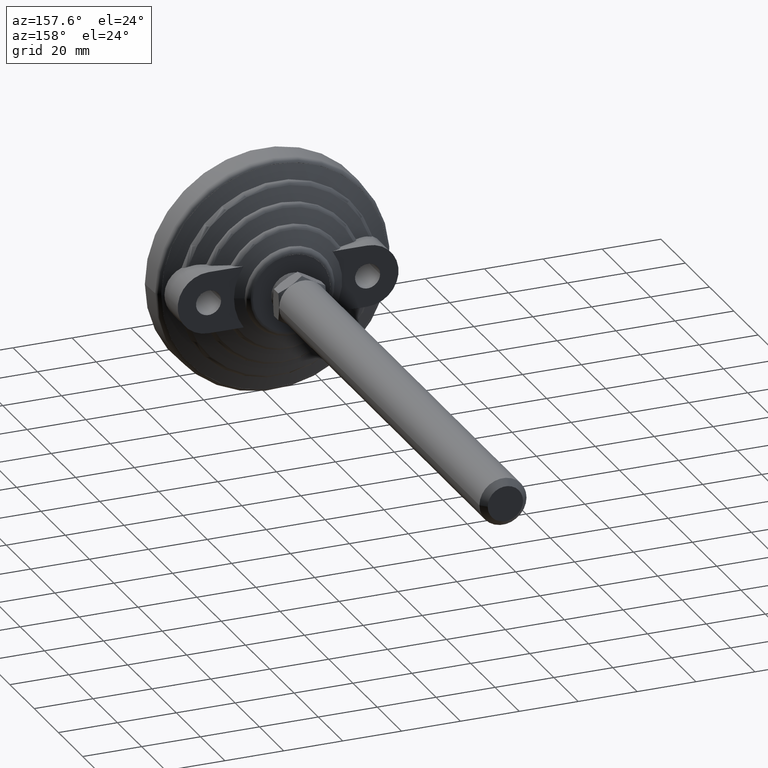
[diagram: clean part render]
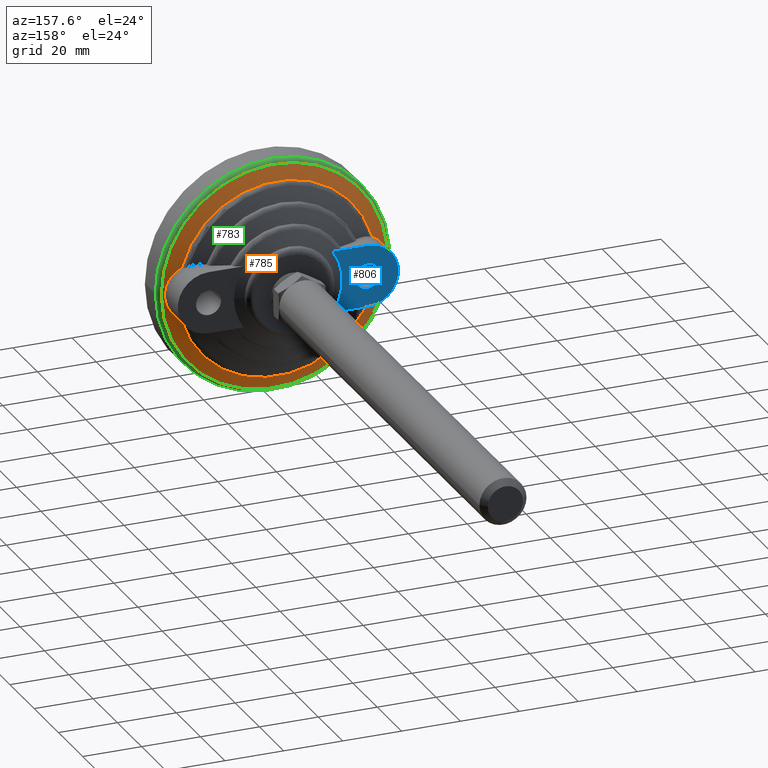
[diagram: same view with three faces highlighted in distinct colors, each labeled with its STEP entity id]
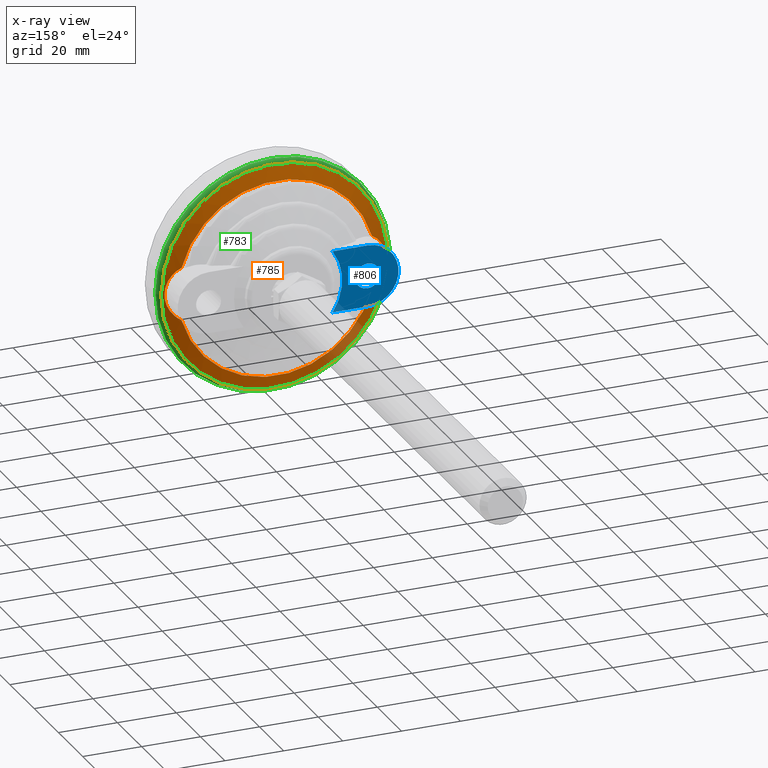
[diagram: x-ray of the same camera — body ghosted, the three highlighted faces saturated]
A machine part, auxiliary view with three faces highlighted in distinct colors.
The next image is the same camera in x-ray (body ghosted, the three faces saturated) — at least one of them is partly hidden behind the body in this view.
Their STEP definitions:

[orange] entity #785 — the highlighted conical surface has half-angle 68.505 deg.
#94=B_SPLINE_CURVE_WITH_KNOTS('',3,(#1251,#1252,#1253,#1254,#1255,#1256,
#1257,#1258,#1259,#1260,#1261,#1262),.UNSPECIFIED.,.F.,.F.,(4,2,2,2,2,4),
(2.08063056382818,2.33542865542635,2.59022674702452,2.84502483862269,3.09982293022086,
3.16026059184862),.UNSPECIFIED.);
#95=B_SPLINE_CURVE_WITH_KNOTS('',3,(#1266,#1267,#1268,#1269,#1270,#1271,
#1272,#1273,#1274,#1275,#1276,#1277),.UNSPECIFIED.,.F.,.F.,(4,2,2,2,2,4),
(1.00100053580773,1.06143819743549,1.31623628903366,1.57103438063183,1.82583247223,
2.08063056382818),.UNSPECIFIED.);
#96=B_SPLINE_CURVE_WITH_KNOTS('',3,(#1279,#1280,#1281,#1282,#1283,#1284,
#1285,#1286,#1287,#1288,#1289,#1290),.UNSPECIFIED.,.F.,.F.,(4,2,2,2,2,4),
(2.08063056382818,2.33542865542635,2.59022674702452,2.84502483862269,3.09982293022086,
3.16026059184862),.UNSPECIFIED.);
#97=B_SPLINE_CURVE_WITH_KNOTS('',3,(#1293,#1294,#1295,#1296,#1297,#1298,
#1299,#1300,#1301,#1302,#1303,#1304),.UNSPECIFIED.,.F.,.F.,(4,2,2,2,2,4),
(1.00100053580773,1.06143819743549,1.31623628903366,1.57103438063183,1.82583247223,
2.08063056382818),.UNSPECIFIED.);
#125=FACE_OUTER_BOUND('',#171,.T.);
#171=EDGE_LOOP('',(#544,#545,#546,#547,#548,#549,#550,#551,#552));
#224=LINE('',#1249,#251);
#251=VECTOR('',#1030,35.9922631242208);
#282=CIRCLE('',#914,38.4317);
#283=CIRCLE('',#916,33.5528262484416);
#284=CIRCLE('',#917,33.5528262484416);
#329=VERTEX_POINT('',#1244);
#330=VERTEX_POINT('',#1248);
#331=VERTEX_POINT('',#1250);
#332=VERTEX_POINT('',#1263);
#333=VERTEX_POINT('',#1265);
#334=VERTEX_POINT('',#1278);
#335=VERTEX_POINT('',#1291);
#415=EDGE_CURVE('',#329,#329,#282,.T.);
#416=EDGE_CURVE('',#329,#330,#224,.T.);
#417=EDGE_CURVE('',#330,#331,#94,.T.);
#418=EDGE_CURVE('',#331,#332,#283,.T.);
#419=EDGE_CURVE('',#332,#333,#95,.T.);
#420=EDGE_CURVE('',#333,#334,#96,.T.);
#421=EDGE_CURVE('',#334,#335,#284,.T.);
#422=EDGE_CURVE('',#335,#330,#97,.T.);
#544=ORIENTED_EDGE('',*,*,#415,.F.);
#545=ORIENTED_EDGE('',*,*,#416,.T.);
#546=ORIENTED_EDGE('',*,*,#417,.T.);
#547=ORIENTED_EDGE('',*,*,#418,.T.);
#548=ORIENTED_EDGE('',*,*,#419,.T.);
#549=ORIENTED_EDGE('',*,*,#420,.T.);
#550=ORIENTED_EDGE('',*,*,#421,.T.);
#551=ORIENTED_EDGE('',*,*,#422,.T.);
#552=ORIENTED_EDGE('',*,*,#416,.F.);
#772=CONICAL_SURFACE('',#915,35.9922631242208,1.19564632290707);
#785=ADVANCED_FACE('',(#125),#772,.T.);
#914=AXIS2_PLACEMENT_3D('',#1246,#1026,#1027);
#915=AXIS2_PLACEMENT_3D('',#1247,#1028,#1029);
#916=AXIS2_PLACEMENT_3D('',#1264,#1031,#1032);
#917=AXIS2_PLACEMENT_3D('',#1292,#1033,#1034);
#1026=DIRECTION('center_axis',(0.,-1.,0.));
#1027=DIRECTION('ref_axis',(-1.,0.,0.));
#1028=DIRECTION('center_axis',(0.,-1.,0.));
#1029=DIRECTION('ref_axis',(-1.,0.,0.));
#1030=DIRECTION('',(-0.9304526691404,0.366412104725684,-1.1394758830209E-16));
#1031=DIRECTION('center_axis',(0.,-1.,0.));
#1032=DIRECTION('ref_axis',(-1.,0.,0.));
#1033=DIRECTION('center_axis',(0.,-1.,0.));
#1034=DIRECTION('ref_axis',(-1.,0.,0.));
#1244=CARTESIAN_POINT('',(38.4317,9.71309,4.70637040081955E-15));
#1246=CARTESIAN_POINT('Origin',(0.,9.71309,0.));
#1247=CARTESIAN_POINT('Origin',(0.,10.6737398316841,0.));
#1248=CARTESIAN_POINT('',(37.5,10.0799933034086,2.32389248903259E-15));
#1249=CARTESIAN_POINT('',(35.9922631242208,10.6737398316841,4.40778098291463E-15));
#1250=CARTESIAN_POINT('',(32.3063360973724,11.6343896633681,9.06050755872555));
#1251=CARTESIAN_POINT('Ctrl Pts',(37.5,10.0799933034086,-3.46944695195361E-16));
#1252=CARTESIAN_POINT('Ctrl Pts',(37.5,10.0799933034086,0.849326971993903));
#1253=CARTESIAN_POINT('Ctrl Pts',(37.3954081081618,10.1095537846386,1.7162549637648));
#1254=CARTESIAN_POINT('Ctrl Pts',(36.9700156185367,10.2309093737991,3.40717322759572));
#1255=CARTESIAN_POINT('Ctrl Pts',(36.6493278685147,10.3226891385099,4.23119298843608));
#1256=CARTESIAN_POINT('Ctrl Pts',(35.8178344612948,10.5643978000669,5.7670026229962));
#1257=CARTESIAN_POINT('Ctrl Pts',(35.3059660725661,10.7146871863577,6.48070832783638));
#1258=CARTESIAN_POINT('Ctrl Pts',(34.1415490632157,11.0639846751723,7.74512297053743));
#1259=CARTESIAN_POINT('Ctrl Pts',(33.4889279688686,11.2631123545329,8.29573212712396));
#1260=CARTESIAN_POINT('Ctrl Pts',(32.641651817313,11.5284577657608,8.85775154482925));
#1261=CARTESIAN_POINT('Ctrl Pts',(32.4756290831059,11.5807422055193,8.96136019027992));
#1262=CARTESIAN_POINT('Ctrl Pts',(32.3063360973724,11.6343896633682,9.06050755872554));
#1263=CARTESIAN_POINT('',(-32.3063360973724,11.6343896633681,9.06050755872555));
#1264=CARTESIAN_POINT('Origin',(0.,11.6343896633681,0.));
#1265=CARTESIAN_POINT('',(-37.5,10.0799933034086,-2.21287018657007E-15));
#1266=CARTESIAN_POINT('Ctrl Pts',(-32.3063360973724,11.6343896633682,9.06050755872553));
#1267=CARTESIAN_POINT('Ctrl Pts',(-32.4756290831059,11.5807422055193,8.96136019027991));
#1268=CARTESIAN_POINT('Ctrl Pts',(-32.641651817313,11.5284577657608,8.85775154482924));
#1269=CARTESIAN_POINT('Ctrl Pts',(-33.4889279688686,11.2631123545329,8.29573212712396));
#1270=CARTESIAN_POINT('Ctrl Pts',(-34.1415490632157,11.0639846751723,7.74512297053743));
#1271=CARTESIAN_POINT('Ctrl Pts',(-35.3059660725661,10.7146871863577,6.48070832783638));
#1272=CARTESIAN_POINT('Ctrl Pts',(-35.8178344612948,10.5643978000669,5.7670026229962));
#1273=CARTESIAN_POINT('Ctrl Pts',(-36.6493278685147,10.3226891385099,4.23119298843608));
#1274=CARTESIAN_POINT('Ctrl Pts',(-36.9700156185367,10.2309093737991,3.40717322759573));
#1275=CARTESIAN_POINT('Ctrl Pts',(-37.3954081081618,10.1095537846386,1.71625496376481));
#1276=CARTESIAN_POINT('Ctrl Pts',(-37.5,10.0799933034086,0.849326971993903));
#1277=CARTESIAN_POINT('Ctrl Pts',(-37.5,10.0799933034086,3.46944695195361E-16));
#1278=CARTESIAN_POINT('',(-32.3063360973724,11.6343896633681,-9.06050755872555));
#1279=CARTESIAN_POINT('Ctrl Pts',(-37.5,10.0799933034086,3.46944695195361E-16));
#1280=CARTESIAN_POINT('Ctrl Pts',(-37.5,10.0799933034086,-0.849326971993903));
#1281=CARTESIAN_POINT('Ctrl Pts',(-37.3954081081618,10.1095537846386,-1.7162549637648));
#1282=CARTESIAN_POINT('Ctrl Pts',(-36.9700156185367,10.2309093737991,-3.40717322759573));
#1283=CARTESIAN_POINT('Ctrl Pts',(-36.6493278685147,10.3226891385099,-4.23119298843608));
#1284=CARTESIAN_POINT('Ctrl Pts',(-35.8178344612948,10.5643978000669,-5.7670026229962));
#1285=CARTESIAN_POINT('Ctrl Pts',(-35.3059660725661,10.7146871863577,-6.48070832783638));
#1286=CARTESIAN_POINT('Ctrl Pts',(-34.1415490632157,11.0639846751723,-7.74512297053743));
#1287=CARTESIAN_POINT('Ctrl Pts',(-33.4889279688686,11.2631123545329,-8.29573212712396));
#1288=CARTESIAN_POINT('Ctrl Pts',(-32.641651817313,11.5284577657608,-8.85775154482925));
#1289=CARTESIAN_POINT('Ctrl Pts',(-32.4756290831059,11.5807422055193,-8.96136019027992));
#1290=CARTESIAN_POINT('Ctrl Pts',(-32.3063360973724,11.6343896633682,-9.06050755872554));
#1291=CARTESIAN_POINT('',(32.3063360973724,11.6343896633681,-9.06050755872555));
#1292=CARTESIAN_POINT('Origin',(0.,11.6343896633681,0.));
#1293=CARTESIAN_POINT('Ctrl Pts',(32.3063360973724,11.6343896633682,-9.06050755872553));
#1294=CARTESIAN_POINT('Ctrl Pts',(32.4756290831059,11.5807422055193,-8.96136019027991));
#1295=CARTESIAN_POINT('Ctrl Pts',(32.641651817313,11.5284577657608,-8.85775154482924));
#1296=CARTESIAN_POINT('Ctrl Pts',(33.4889279688686,11.2631123545329,-8.29573212712396));
#1297=CARTESIAN_POINT('Ctrl Pts',(34.1415490632157,11.0639846751723,-7.74512297053743));
#1298=CARTESIAN_POINT('Ctrl Pts',(35.3059660725661,10.7146871863577,-6.48070832783638));
#1299=CARTESIAN_POINT('Ctrl Pts',(35.8178344612948,10.5643978000669,-5.7670026229962));
#1300=CARTESIAN_POINT('Ctrl Pts',(36.6493278685147,10.3226891385099,-4.23119298843608));
#1301=CARTESIAN_POINT('Ctrl Pts',(36.9700156185367,10.2309093737991,-3.40717322759573));
#1302=CARTESIAN_POINT('Ctrl Pts',(37.3954081081618,10.1095537846386,-1.71625496376481));
#1303=CARTESIAN_POINT('Ctrl Pts',(37.5,10.0799933034086,-0.849326971993903));
#1304=CARTESIAN_POINT('Ctrl Pts',(37.5,10.0799933034086,-3.46944695195361E-16));

[blue] entity #806 — the highlighted planar face has unit normal (0, 1, 0).
#33=FACE_BOUND('',#194,.T.);
#45=PLANE('',#967);
#146=FACE_OUTER_BOUND('',#193,.T.);
#193=EDGE_LOOP('',(#670,#671,#672,#673));
#194=EDGE_LOOP('',(#674));
#236=LINE('',#1569,#263);
#237=LINE('',#1576,#264);
#263=VECTOR('',#1136,11.8974188354472);
#264=VECTOR('',#1143,11.8974188354472);
#297=CIRCLE('',#935,18.3939652558089);
#304=CIRCLE('',#947,4.25);
#312=CIRCLE('',#959,10.5);
#352=VERTEX_POINT('',#1383);
#353=VERTEX_POINT('',#1387);
#366=VERTEX_POINT('',#1498);
#376=VERTEX_POINT('',#1535);
#377=VERTEX_POINT('',#1537);
#443=EDGE_CURVE('',#352,#353,#297,.T.);
#460=EDGE_CURVE('',#366,#366,#304,.T.);
#474=EDGE_CURVE('',#376,#377,#312,.T.);
#486=EDGE_CURVE('',#353,#376,#236,.T.);
#489=EDGE_CURVE('',#377,#352,#237,.T.);
#670=ORIENTED_EDGE('',*,*,#443,.F.);
#671=ORIENTED_EDGE('',*,*,#489,.F.);
#672=ORIENTED_EDGE('',*,*,#474,.F.);
#673=ORIENTED_EDGE('',*,*,#486,.F.);
#674=ORIENTED_EDGE('',*,*,#460,.T.);
#806=ADVANCED_FACE('',(#146,#33),#45,.T.);
#935=AXIS2_PLACEMENT_3D('',#1388,#1071,#1072);
#947=AXIS2_PLACEMENT_3D('',#1499,#1095,#1096);
#959=AXIS2_PLACEMENT_3D('',#1538,#1123,#1124);
#967=AXIS2_PLACEMENT_3D('',#1593,#1146,#1147);
#1071=DIRECTION('center_axis',(0.,1.,0.));
#1072=DIRECTION('ref_axis',(-1.,0.,0.));
#1095=DIRECTION('center_axis',(0.,-1.,0.));
#1096=DIRECTION('ref_axis',(1.,0.,0.));
#1123=DIRECTION('center_axis',(0.,-1.,0.));
#1124=DIRECTION('ref_axis',(0.,0.,-1.));
#1136=DIRECTION('',(-1.,0.,0.));
#1143=DIRECTION('',(1.,0.,0.));
#1146=DIRECTION('center_axis',(0.,1.,0.));
#1147=DIRECTION('ref_axis',(0.,0.,1.));
#1383=CARTESIAN_POINT('',(-15.1025811645528,21.,-10.5));
#1387=CARTESIAN_POINT('',(-15.1025811645528,21.,10.5));
#1388=CARTESIAN_POINT('Origin',(0.,21.,0.));
#1498=CARTESIAN_POINT('',(-31.25,21.,5.20457700374478E-16));
#1499=CARTESIAN_POINT('Origin',(-27.,21.,0.));
#1535=CARTESIAN_POINT('',(-27.,21.,10.5));
#1537=CARTESIAN_POINT('',(-27.,21.,-10.5));
#1538=CARTESIAN_POINT('Origin',(-27.,21.,-1.77635683940025E-15));
#1569=CARTESIAN_POINT('',(-15.1025811645528,21.,10.5));
#1576=CARTESIAN_POINT('',(-27.,21.,-10.5));
#1593=CARTESIAN_POINT('Origin',(0.,21.,0.));

[green] entity #783 — the highlighted toroidal blend (fillet) surface has major radius 37.7145 mm and minor (blend) radius 2.0199 mm.
#114=TOROIDAL_SURFACE('',#909,37.7144730235203,2.01989201152481);
#123=FACE_OUTER_BOUND('',#169,.T.);
#169=EDGE_LOOP('',(#533,#534,#535,#536,#537,#538));
#277=CIRCLE('',#907,39.7313304758784);
#278=CIRCLE('',#908,39.7313304758784);
#279=CIRCLE('',#910,2.01989201152481);
#280=CIRCLE('',#911,38.4291015790755);
#281=CIRCLE('',#912,38.4291015790755);
#325=VERTEX_POINT('',#1232);
#326=VERTEX_POINT('',#1234);
#327=VERTEX_POINT('',#1238);
#328=VERTEX_POINT('',#1240);
#409=EDGE_CURVE('',#325,#326,#277,.T.);
#410=EDGE_CURVE('',#326,#325,#278,.T.);
#411=EDGE_CURVE('',#326,#327,#279,.T.);
#412=EDGE_CURVE('',#327,#328,#280,.T.);
#413=EDGE_CURVE('',#328,#327,#281,.T.);
#533=ORIENTED_EDGE('',*,*,#410,.F.);
#534=ORIENTED_EDGE('',*,*,#411,.T.);
#535=ORIENTED_EDGE('',*,*,#412,.T.);
#536=ORIENTED_EDGE('',*,*,#413,.T.);
#537=ORIENTED_EDGE('',*,*,#411,.F.);
#538=ORIENTED_EDGE('',*,*,#409,.F.);
#783=ADVANCED_FACE('',(#123),#114,.T.);
#907=AXIS2_PLACEMENT_3D('',#1235,#1011,#1012);
#908=AXIS2_PLACEMENT_3D('',#1236,#1013,#1014);
#909=AXIS2_PLACEMENT_3D('',#1237,#1015,#1016);
#910=AXIS2_PLACEMENT_3D('',#1239,#1017,#1018);
#911=AXIS2_PLACEMENT_3D('',#1241,#1019,#1020);
#912=AXIS2_PLACEMENT_3D('',#1242,#1021,#1022);
#1011=DIRECTION('center_axis',(0.,-1.,0.));
#1012=DIRECTION('ref_axis',(-1.,0.,0.));
#1013=DIRECTION('center_axis',(0.,-1.,0.));
#1014=DIRECTION('ref_axis',(-1.,0.,0.));
#1015=DIRECTION('center_axis',(0.,-1.,0.));
#1016=DIRECTION('ref_axis',(0.,0.,-1.));
#1017=DIRECTION('center_axis',(-1.,0.,-1.22464679914735E-16));
#1018=DIRECTION('ref_axis',(-1.22464679914735E-16,0.,1.));
#1019=DIRECTION('center_axis',(0.,-1.,0.));
#1020=DIRECTION('ref_axis',(-1.,0.,0.));
#1021=DIRECTION('center_axis',(0.,-1.,0.));
#1022=DIRECTION('ref_axis',(-1.,0.,0.));
#1232=CARTESIAN_POINT('',(39.7313304758784,7.93549167361212,4.86568466931502E-15));
#1234=CARTESIAN_POINT('',(4.86552397465773E-15,7.93549167361212,39.7313304758784));
#1235=CARTESIAN_POINT('Origin',(0.,7.93549167361212,0.));
#1236=CARTESIAN_POINT('Origin',(0.,7.93549167361212,0.));
#1237=CARTESIAN_POINT('Origin',(0.,7.82481306190449,0.));
#1238=CARTESIAN_POINT('',(-4.70620762429233E-15,9.71406417433154,38.4291015790755));
#1239=CARTESIAN_POINT('Origin',(-4.61869086697834E-15,7.82481306190449,
37.7144730235203));
#1240=CARTESIAN_POINT('',(38.4291015790755,9.71406417433154,4.70605219654214E-15));
#1241=CARTESIAN_POINT('Origin',(0.,9.71406417433154,0.));
#1242=CARTESIAN_POINT('Origin',(0.,9.71406417433154,0.));